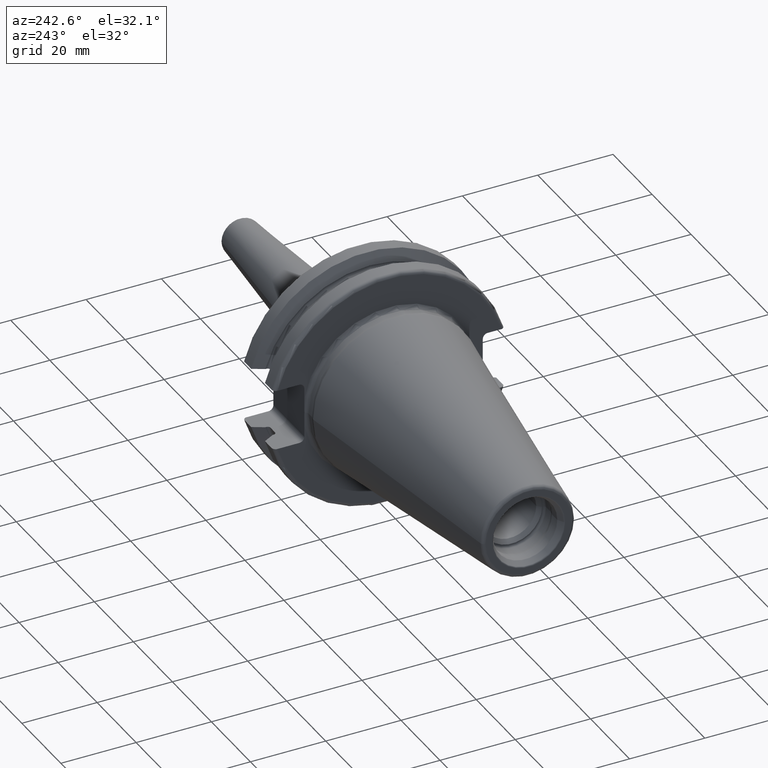
[diagram: clean part render]
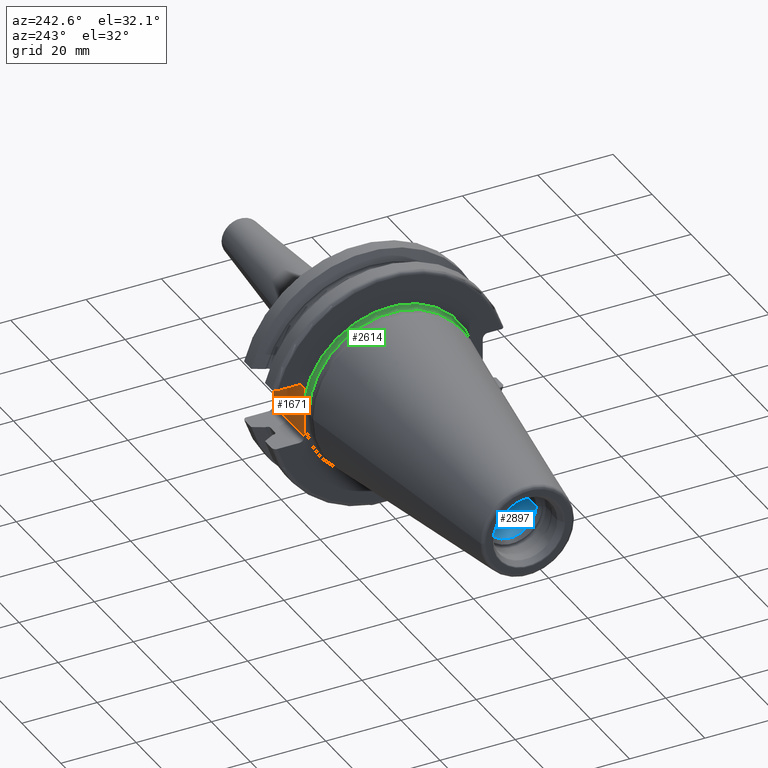
[diagram: same view with three faces highlighted in distinct colors, each labeled with its STEP entity id]
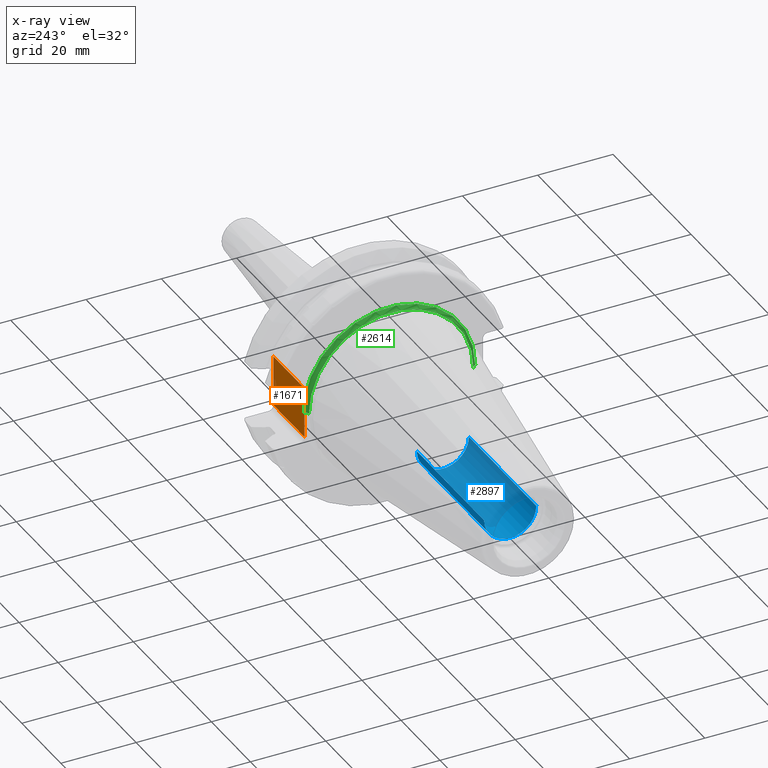
[diagram: x-ray of the same camera — body ghosted, the three highlighted faces saturated]
A machine part, auxiliary view with three faces highlighted in distinct colors.
The next image is the same camera in x-ray (body ghosted, the three faces saturated) — at least one of them is partly hidden behind the body in this view.
Their STEP definitions:

[orange] entity #1671 — the highlighted planar face has unit normal (0, -1, 0).
#96=CARTESIAN_POINT('',(3.145714015969E0,2.255E1,0.E0));
#97=CARTESIAN_POINT('',(3.145714015969E0,2.255E1,-1.830251188857E-1));
#98=CARTESIAN_POINT('',(3.147263299438E0,2.255E1,-5.490774984715E-1));
#99=CARTESIAN_POINT('',(3.153915624300E0,2.255E1,-1.098219783342E0));
#100=CARTESIAN_POINT('',(3.163955531798E0,2.255E1,-1.647254187265E0));
#101=CARTESIAN_POINT('',(3.175890292850E0,2.255E1,-2.196155647006E0));
#102=CARTESIAN_POINT('',(3.187756155044E0,2.255E1,-2.744876756971E0));
#103=CARTESIAN_POINT('',(3.197183898560E0,2.255E1,-3.293518646440E0));
#104=CARTESIAN_POINT('',(3.2E0,2.255E1,-3.659354563864E0));
#105=CARTESIAN_POINT('',(3.2E0,2.255E1,-3.842281223440E0));
#122=DIRECTION('',(-1.E0,0.E0,0.E0));
#123=VECTOR('',#122,1.585E1);
#124=CARTESIAN_POINT('',(1.905E1,2.255E1,-6.75E0));
#125=LINE('',#124,#123);
#126=DIRECTION('',(-1.E0,0.E0,0.E0));
#127=VECTOR('',#126,1.585E1);
#128=CARTESIAN_POINT('',(1.905E1,2.255E1,6.75E0));
#129=LINE('',#128,#127);
#144=DIRECTION('',(0.E0,0.E0,-1.E0));
#145=VECTOR('',#144,2.907718776560E0);
#146=CARTESIAN_POINT('',(3.2E0,2.255E1,6.75E0));
#147=LINE('',#146,#145);
#191=DIRECTION('',(0.E0,0.E0,-1.E0));
#192=VECTOR('',#191,2.907718776560E0);
#193=CARTESIAN_POINT('',(3.2E0,2.255E1,-3.842281223440E0));
#194=LINE('',#193,#192);
#209=DIRECTION('',(0.E0,0.E0,-1.E0));
#210=VECTOR('',#209,1.35E1);
#211=CARTESIAN_POINT('',(1.905E1,2.255E1,6.75E0));
#212=LINE('',#211,#210);
#1024=CARTESIAN_POINT('',(3.2E0,2.255E1,3.842281223440E0));
#1025=CARTESIAN_POINT('',(3.2E0,2.255E1,3.659346360345E0));
#1026=CARTESIAN_POINT('',(3.197183660273E0,2.255E1,3.293495674472E0));
#1027=CARTESIAN_POINT('',(3.187755287998E0,2.255E1,2.744832710969E0));
#1028=CARTESIAN_POINT('',(3.175889115457E0,2.255E1,2.196103113875E0));
#1029=CARTESIAN_POINT('',(3.163954665645E0,2.255E1,1.647211248391E0));
#1030=CARTESIAN_POINT('',(3.153915287595E0,2.255E1,1.098195325368E0));
#1031=CARTESIAN_POINT('',(3.147263292433E0,2.255E1,5.490722257557E-1));
#1032=CARTESIAN_POINT('',(3.145714015969E0,2.255E1,1.830242653455E-1));
#1033=CARTESIAN_POINT('',(3.145714015969E0,2.255E1,0.E0));
#1400=VERTEX_POINT('',#1024);
#1401=VERTEX_POINT('',#1033);
#1402=VERTEX_POINT('',#105);
#1431=CARTESIAN_POINT('',(1.905E1,2.255E1,-6.75E0));
#1432=CARTESIAN_POINT('',(3.2E0,2.255E1,-6.75E0));
#1433=VERTEX_POINT('',#1431);
#1434=VERTEX_POINT('',#1432);
#1435=CARTESIAN_POINT('',(1.905E1,2.255E1,6.75E0));
#1436=CARTESIAN_POINT('',(3.2E0,2.255E1,6.75E0));
#1437=VERTEX_POINT('',#1435);
#1438=VERTEX_POINT('',#1436);
#1651=CARTESIAN_POINT('',(1.905E1,2.255E1,8.1E0));
#1652=DIRECTION('',(0.E0,-1.E0,0.E0));
#1653=DIRECTION('',(0.E0,0.E0,-1.E0));
#1654=AXIS2_PLACEMENT_3D('',#1651,#1652,#1653);
#1655=PLANE('',#1654);
#1657=ORIENTED_EDGE('',*,*,#1656,.F.);
#1659=ORIENTED_EDGE('',*,*,#1658,.F.);
#1661=ORIENTED_EDGE('',*,*,#1660,.T.);
#1663=ORIENTED_EDGE('',*,*,#1662,.T.);
#1665=ORIENTED_EDGE('',*,*,#1664,.T.);
#1666=ORIENTED_EDGE('',*,*,#1639,.T.);
#1668=ORIENTED_EDGE('',*,*,#1667,.T.);
#1669=EDGE_LOOP('',(#1657,#1659,#1661,#1663,#1665,#1666,#1668));
#1670=FACE_OUTER_BOUND('',#1669,.F.);
#1671=ADVANCED_FACE('',(#1670),#1655,.F.);
#106=B_SPLINE_CURVE_WITH_KNOTS('',3,(#96,#97,#98,#99,#100,#101,#102,#103,#104,
#105),.UNSPECIFIED.,.F.,.F.,(4,1,1,1,1,1,1,4),(0.E0,1.428571428571E-1,
2.857142857143E-1,4.285714285714E-1,5.714285714286E-1,7.142857142857E-1,
8.571428571429E-1,1.E0),.UNSPECIFIED.);
#1034=B_SPLINE_CURVE_WITH_KNOTS('',3,(#1024,#1025,#1026,#1027,#1028,#1029,#1030,
#1031,#1032,#1033),.UNSPECIFIED.,.F.,.F.,(4,1,1,1,1,1,1,4),(0.E0,
1.428571428571E-1,2.857142857143E-1,4.285714285714E-1,5.714285714286E-1,
7.142857142857E-1,8.571428571429E-1,1.E0),.UNSPECIFIED.);
#1639=EDGE_CURVE('',#1401,#1402,#106,.T.);
#1656=EDGE_CURVE('',#1433,#1434,#125,.T.);
#1658=EDGE_CURVE('',#1437,#1433,#212,.T.);
#1660=EDGE_CURVE('',#1437,#1438,#129,.T.);
#1662=EDGE_CURVE('',#1438,#1400,#147,.T.);
#1664=EDGE_CURVE('',#1400,#1401,#1034,.T.);
#1667=EDGE_CURVE('',#1402,#1434,#194,.T.);

[blue] entity #2897 — the highlighted cylindrical surface (edge-blend (fillet) strip) has radius 6.92 mm, axis along (1, 0, 0).
#1211=CARTESIAN_POINT('',(-5.88E1,0.E0,0.E0));
#1212=DIRECTION('',(-1.E0,0.E0,0.E0));
#1213=DIRECTION('',(0.E0,1.E0,0.E0));
#1214=AXIS2_PLACEMENT_3D('',#1211,#1212,#1213);
#1220=DIRECTION('',(-1.E0,0.E0,0.E0));
#1221=VECTOR('',#1220,3.455E1);
#1222=CARTESIAN_POINT('',(-2.425E1,6.92E0,0.E0));
#1223=LINE('',#1222,#1221);
#1224=CARTESIAN_POINT('',(-2.425E1,0.E0,0.E0));
#1225=DIRECTION('',(-1.E0,0.E0,0.E0));
#1226=DIRECTION('',(0.E0,1.E0,0.E0));
#1227=AXIS2_PLACEMENT_3D('',#1224,#1225,#1226);
#1229=DIRECTION('',(-1.E0,0.E0,0.E0));
#1230=VECTOR('',#1229,3.455E1);
#1231=CARTESIAN_POINT('',(-2.425E1,-6.92E0,0.E0));
#1232=LINE('',#1231,#1230);
#1265=CARTESIAN_POINT('',(-2.425E1,6.92E0,0.E0));
#1267=VERTEX_POINT('',#1265);
#1268=CARTESIAN_POINT('',(-5.88E1,6.92E0,0.E0));
#1269=VERTEX_POINT('',#1268);
#1288=CARTESIAN_POINT('',(-2.425E1,-6.92E0,0.E0));
#1289=VERTEX_POINT('',#1288);
#1290=CARTESIAN_POINT('',(-5.88E1,-6.92E0,0.E0));
#1291=VERTEX_POINT('',#1290);
#2883=CARTESIAN_POINT('',(-7.065789777418E1,0.E0,0.E0));
#2884=DIRECTION('',(1.E0,0.E0,0.E0));
#2885=DIRECTION('',(0.E0,-1.E0,0.E0));
#2886=AXIS2_PLACEMENT_3D('',#2883,#2884,#2885);
#2887=CYLINDRICAL_SURFACE('',#2886,6.92E0);
#2889=ORIENTED_EDGE('',*,*,#2888,.F.);
#2891=ORIENTED_EDGE('',*,*,#2890,.T.);
#2893=ORIENTED_EDGE('',*,*,#2892,.T.);
#2894=ORIENTED_EDGE('',*,*,#2876,.F.);
#2895=EDGE_LOOP('',(#2889,#2891,#2893,#2894));
#2896=FACE_OUTER_BOUND('',#2895,.F.);
#2897=ADVANCED_FACE('',(#2896),#2887,.F.);
#1215=CIRCLE('',#1214,6.92E0);
#1228=CIRCLE('',#1227,6.92E0);
#2876=EDGE_CURVE('',#1269,#1291,#1215,.T.);
#2888=EDGE_CURVE('',#1267,#1269,#1223,.T.);
#2890=EDGE_CURVE('',#1267,#1289,#1228,.T.);
#2892=EDGE_CURVE('',#1289,#1291,#1232,.T.);

[green] entity #2614 — the highlighted toroidal blend (fillet) surface has major radius 22.875 mm and minor (blend) radius 1 mm.
#78=CARTESIAN_POINT('',(2.2E0,0.E0,0.E0));
#79=DIRECTION('',(1.E0,0.E0,0.E0));
#80=DIRECTION('',(0.E0,1.E0,0.E0));
#81=AXIS2_PLACEMENT_3D('',#78,#79,#80);
#107=CARTESIAN_POINT('',(2.2E0,2.2875E1,0.E0));
#108=DIRECTION('',(0.E0,0.E0,-1.E0));
#109=DIRECTION('',(9.457140159689E-1,-3.25E-1,0.E0));
#110=AXIS2_PLACEMENT_3D('',#107,#108,#109);
#112=CARTESIAN_POINT('',(2.2E0,-2.2875E1,0.E0));
#113=DIRECTION('',(0.E0,0.E0,1.E0));
#114=DIRECTION('',(1.E0,0.E0,0.E0));
#115=AXIS2_PLACEMENT_3D('',#112,#113,#114);
#1024=CARTESIAN_POINT('',(3.2E0,2.255E1,3.842281223440E0));
#1025=CARTESIAN_POINT('',(3.2E0,2.255E1,3.659346360345E0));
#1026=CARTESIAN_POINT('',(3.197183660273E0,2.255E1,3.293495674472E0));
#1027=CARTESIAN_POINT('',(3.187755287998E0,2.255E1,2.744832710969E0));
#1028=CARTESIAN_POINT('',(3.175889115457E0,2.255E1,2.196103113875E0));
#1029=CARTESIAN_POINT('',(3.163954665645E0,2.255E1,1.647211248391E0));
#1030=CARTESIAN_POINT('',(3.153915287595E0,2.255E1,1.098195325368E0));
#1031=CARTESIAN_POINT('',(3.147263292433E0,2.255E1,5.490722257557E-1));
#1032=CARTESIAN_POINT('',(3.145714015969E0,2.255E1,1.830242653455E-1));
#1033=CARTESIAN_POINT('',(3.145714015969E0,2.255E1,0.E0));
#1035=CARTESIAN_POINT('',(3.2E0,0.E0,0.E0));
#1036=DIRECTION('',(1.E0,0.E0,0.E0));
#1037=DIRECTION('',(0.E0,9.857923497268E-1,1.679685780739E-1));
#1038=AXIS2_PLACEMENT_3D('',#1035,#1036,#1037);
#1254=CARTESIAN_POINT('',(2.2E0,2.1875E1,0.E0));
#1256=VERTEX_POINT('',#1254);
#1258=CARTESIAN_POINT('',(3.2E0,-2.2875E1,0.E0));
#1259=CARTESIAN_POINT('',(2.2E0,-2.1875E1,0.E0));
#1260=VERTEX_POINT('',#1258);
#1261=VERTEX_POINT('',#1259);
#1400=VERTEX_POINT('',#1024);
#1401=VERTEX_POINT('',#1033);
#2602=CARTESIAN_POINT('',(2.2E0,0.E0,0.E0));
#2603=DIRECTION('',(1.E0,0.E0,0.E0));
#2604=DIRECTION('',(0.E0,-1.E0,0.E0));
#2605=AXIS2_PLACEMENT_3D('',#2602,#2603,#2604);
#2606=TOROIDAL_SURFACE('',#2605,2.2875E1,1.E0);
#2607=ORIENTED_EDGE('',*,*,#1664,.F.);
#2608=ORIENTED_EDGE('',*,*,#1758,.T.);
#2609=ORIENTED_EDGE('',*,*,#1644,.T.);
#2610=ORIENTED_EDGE('',*,*,#1613,.F.);
#2611=ORIENTED_EDGE('',*,*,#1641,.F.);
#2612=EDGE_LOOP('',(#2607,#2608,#2609,#2610,#2611));
#2613=FACE_OUTER_BOUND('',#2612,.F.);
#2614=ADVANCED_FACE('',(#2613),#2606,.F.);
#82=CIRCLE('',#81,2.1875E1);
#111=CIRCLE('',#110,1.E0);
#116=CIRCLE('',#115,1.E0);
#1034=B_SPLINE_CURVE_WITH_KNOTS('',3,(#1024,#1025,#1026,#1027,#1028,#1029,#1030,
#1031,#1032,#1033),.UNSPECIFIED.,.F.,.F.,(4,1,1,1,1,1,1,4),(0.E0,
1.428571428571E-1,2.857142857143E-1,4.285714285714E-1,5.714285714286E-1,
7.142857142857E-1,8.571428571429E-1,1.E0),.UNSPECIFIED.);
#1039=CIRCLE('',#1038,2.2875E1);
#1613=EDGE_CURVE('',#1256,#1261,#82,.T.);
#1641=EDGE_CURVE('',#1401,#1256,#111,.T.);
#1644=EDGE_CURVE('',#1260,#1261,#116,.T.);
#1664=EDGE_CURVE('',#1400,#1401,#1034,.T.);
#1758=EDGE_CURVE('',#1400,#1260,#1039,.T.);